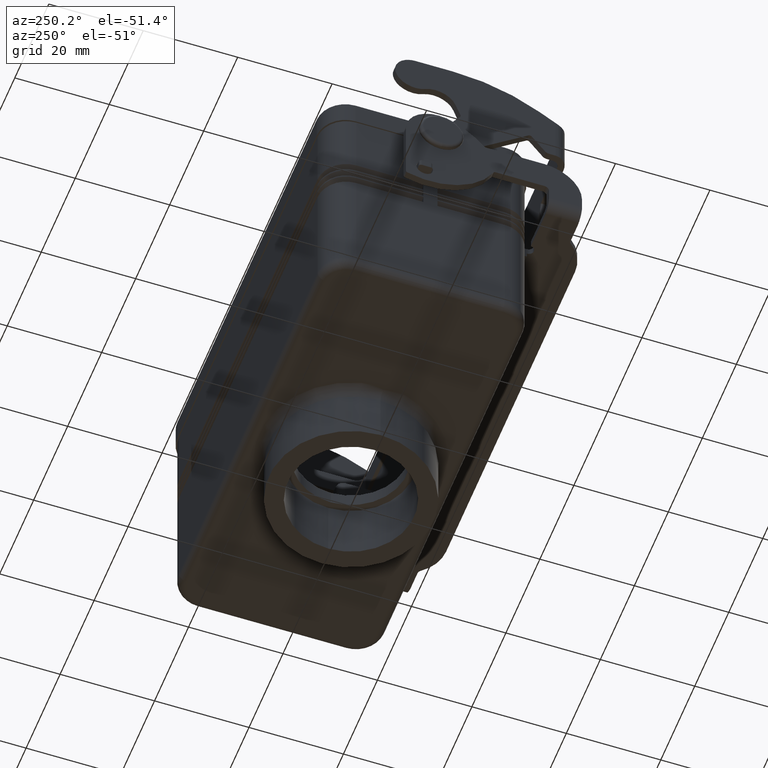
[diagram: clean part render]
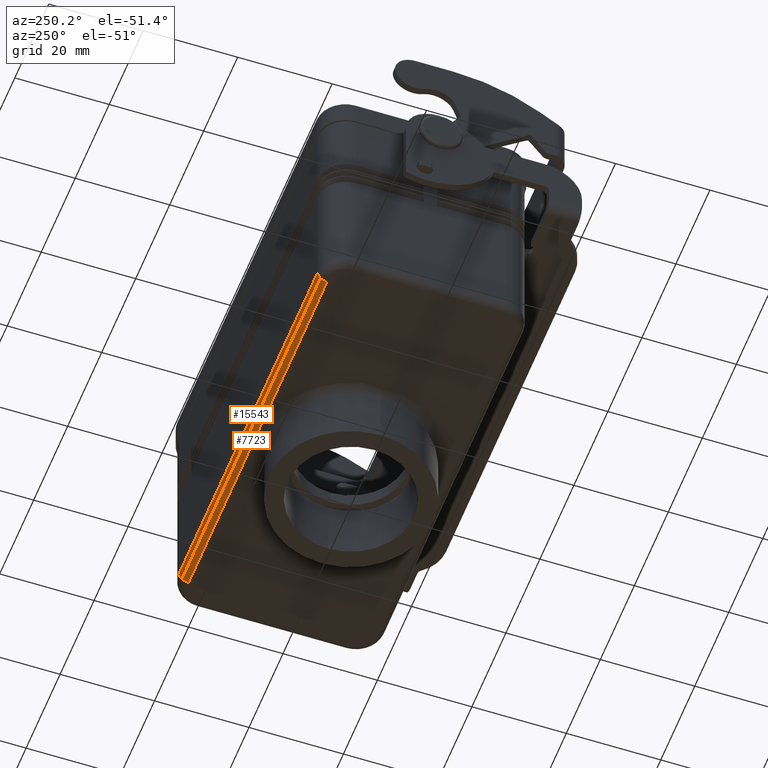
[diagram: same view with one multi-face feature highlighted, each face labeled with its STEP entity id]
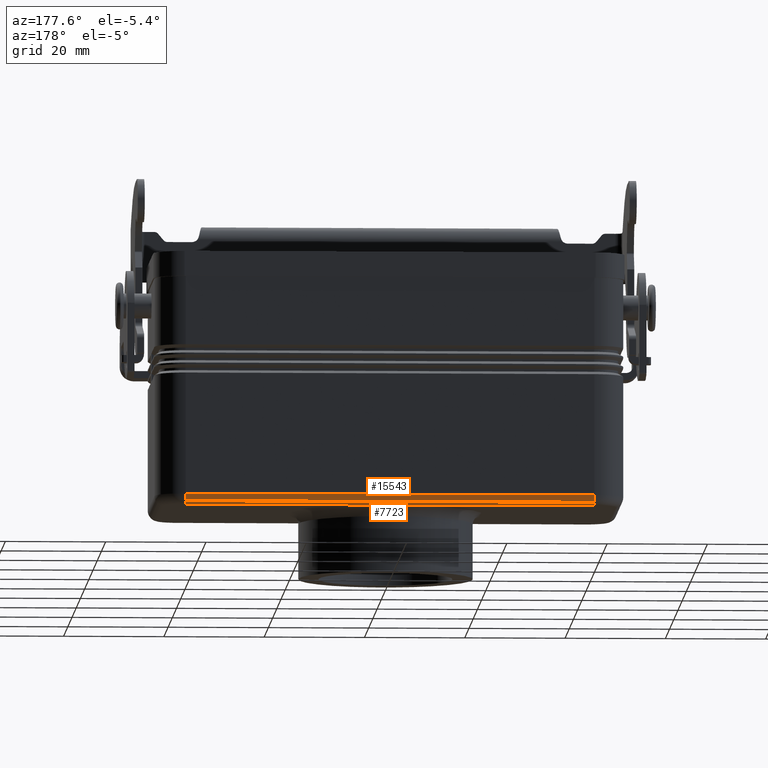
[diagram: same view with one multi-face feature highlighted, each face labeled with its STEP entity id]
A machine part, auxiliary view. The highlighted faces form ONE feature: a constant-radius fillet chain: 2 tangent blend faces with common blend radius 2 mm. The faces share edges in the B-rep.
A second angle (auxiliary view) of the same feature is appended — it is thin or edge-on in the first view.
Their STEP definitions:
[1] entity #7723 (Cylinder):
#7682=CARTESIAN_POINT('',(20.374999999999996,19.750000000000007,-39.500000000000000));
#7683=DIRECTION('',(-1.0,0.0,4.103392E-033));
#7684=DIRECTION('',(0.0,0.707106781186545,-0.707106781186550));
#7685=AXIS2_PLACEMENT_3D('',#7682,#7683,#7684);
#7686=CYLINDRICAL_SURFACE('',#7685,2.0);
#7687=CARTESIAN_POINT('',(40.749999999999993,21.164213562373099,-40.914213562373099));
#7688=VERTEX_POINT('',#7687);
#7689=CARTESIAN_POINT('',(-40.749999999999993,21.164213562373099,-40.914213562373099));
#7690=VERTEX_POINT('',#7689);
#7691=CARTESIAN_POINT('',(40.749999999999993,21.164213562373099,-40.914213562373099));
#7692=DIRECTION('',(-1.0,0.0,0.0));
#7693=VECTOR('',#7692,81.499999999999986);
#7694=LINE('',#7691,#7693);
#7695=EDGE_CURVE('',#7688,#7690,#7694,.T.);
#7696=ORIENTED_EDGE('',*,*,#7695,.F.);
#7697=CARTESIAN_POINT('',(40.749999999999993,19.750000000000007,-41.500000000000000));
#7698=VERTEX_POINT('',#7697);
#7699=CARTESIAN_POINT('',(40.749999999999993,19.750000000000007,-39.500000000000000));
#7700=DIRECTION('',(-1.0,0.0,0.0));
#7701=DIRECTION('',(0.0,1.0,0.0));
#7702=AXIS2_PLACEMENT_3D('',#7699,#7700,#7701);
#7703=CIRCLE('',#7702,2.000000000000000);
#7704=EDGE_CURVE('',#7688,#7698,#7703,.T.);
#7705=ORIENTED_EDGE('',*,*,#7704,.T.);
#7706=CARTESIAN_POINT('',(-40.749999999999993,19.750000000000007,-41.500000000000000));
#7707=VERTEX_POINT('',#7706);
#7708=CARTESIAN_POINT('',(40.749999999999993,19.750000000000007,-41.500000000000000));
#7709=DIRECTION('',(-1.0,0.0,0.0));
#7710=VECTOR('',#7709,81.499999999999986);
#7711=LINE('',#7708,#7710);
#7712=EDGE_CURVE('',#7698,#7707,#7711,.T.);
#7713=ORIENTED_EDGE('',*,*,#7712,.T.);
#7714=CARTESIAN_POINT('',(-40.749999999999993,19.750000000000007,-39.500000000000000));
#7715=DIRECTION('',(1.0,0.0,0.0));
#7716=DIRECTION('',(0.0,0.0,-1.0));
#7717=AXIS2_PLACEMENT_3D('',#7714,#7715,#7716);
#7718=CIRCLE('',#7717,2.000000000000002);
#7719=EDGE_CURVE('',#7707,#7690,#7718,.T.);
#7720=ORIENTED_EDGE('',*,*,#7719,.T.);
#7721=EDGE_LOOP('',(#7696,#7705,#7713,#7720));
#7722=FACE_OUTER_BOUND('',#7721,.T.);
#7723=ADVANCED_FACE('',(#7722),#7686,.T.);
[2] entity #15543 (Cylinder):
#7687=CARTESIAN_POINT('',(40.749999999999993,21.164213562373099,-40.914213562373099));
#7688=VERTEX_POINT('',#7687);
#7689=CARTESIAN_POINT('',(-40.749999999999993,21.164213562373099,-40.914213562373099));
#7690=VERTEX_POINT('',#7689);
#7691=CARTESIAN_POINT('',(40.749999999999993,21.164213562373099,-40.914213562373099));
#7692=DIRECTION('',(-1.0,0.0,0.0));
#7693=VECTOR('',#7692,81.499999999999986);
#7694=LINE('',#7691,#7693);
#7695=EDGE_CURVE('',#7688,#7690,#7694,.T.);
#14502=CARTESIAN_POINT('',(-40.749999999999993,21.750000000000007,-39.500000000000007));
#14503=VERTEX_POINT('',#14502);
#14511=CARTESIAN_POINT('',(-40.749999999999993,19.750000000000007,-39.500000000000000));
#14512=DIRECTION('',(1.0,0.0,0.0));
#14513=DIRECTION('',(0.0,0.0,-1.0));
#14514=AXIS2_PLACEMENT_3D('',#14511,#14512,#14513);
#14515=CIRCLE('',#14514,2.000000000000002);
#14516=EDGE_CURVE('',#7690,#14503,#14515,.T.);
#14644=CARTESIAN_POINT('',(40.749999999999993,21.750000000000007,-39.500000000000007));
#14645=VERTEX_POINT('',#14644);
#14646=CARTESIAN_POINT('',(40.749999999999993,19.750000000000007,-39.500000000000000));
#14647=DIRECTION('',(-1.0,0.0,0.0));
#14648=DIRECTION('',(0.0,1.0,0.0));
#14649=AXIS2_PLACEMENT_3D('',#14646,#14647,#14648);
#14650=CIRCLE('',#14649,2.000000000000000);
#14651=EDGE_CURVE('',#14645,#7688,#14650,.T.);
#15527=CARTESIAN_POINT('',(20.374999999999996,19.750000000000007,-39.500000000000000));
#15528=DIRECTION('',(-1.0,0.0,4.103392E-033));
#15529=DIRECTION('',(0.0,0.707106781186545,-0.707106781186550));
#15530=AXIS2_PLACEMENT_3D('',#15527,#15528,#15529);
#15531=CYLINDRICAL_SURFACE('',#15530,2.0);
#15532=ORIENTED_EDGE('',*,*,#7695,.T.);
#15533=ORIENTED_EDGE('',*,*,#14516,.T.);
#15534=CARTESIAN_POINT('',(-40.749999999999993,21.750000000000007,-39.500000000000007));
#15535=DIRECTION('',(1.0,0.0,0.0));
#15536=VECTOR('',#15535,81.499999999999986);
#15537=LINE('',#15534,#15536);
#15538=EDGE_CURVE('',#14503,#14645,#15537,.T.);
#15539=ORIENTED_EDGE('',*,*,#15538,.T.);
#15540=ORIENTED_EDGE('',*,*,#14651,.T.);
#15541=EDGE_LOOP('',(#15532,#15533,#15539,#15540));
#15542=FACE_OUTER_BOUND('',#15541,.T.);
#15543=ADVANCED_FACE('',(#15542),#15531,.T.);